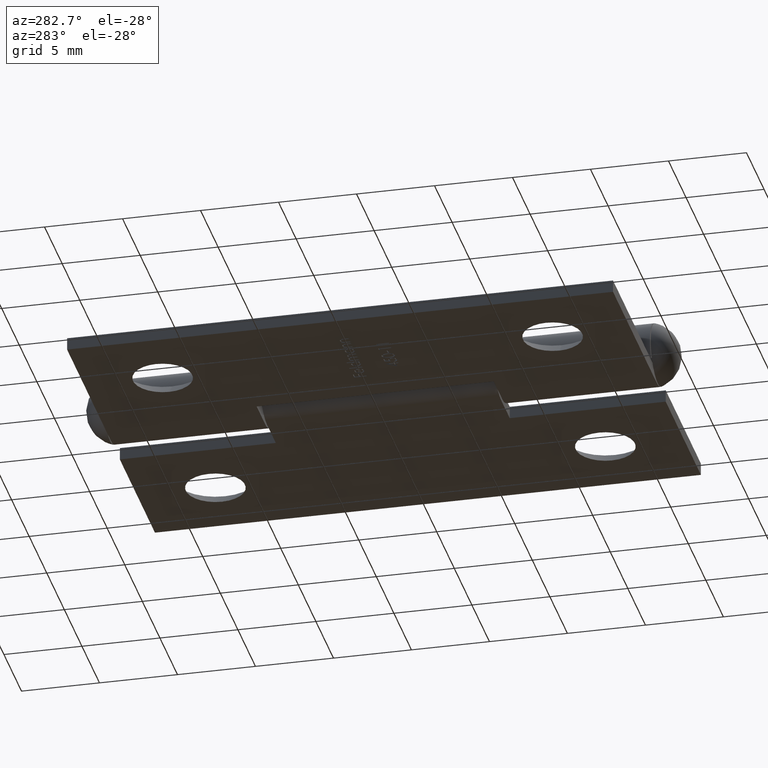
[diagram: clean part render]
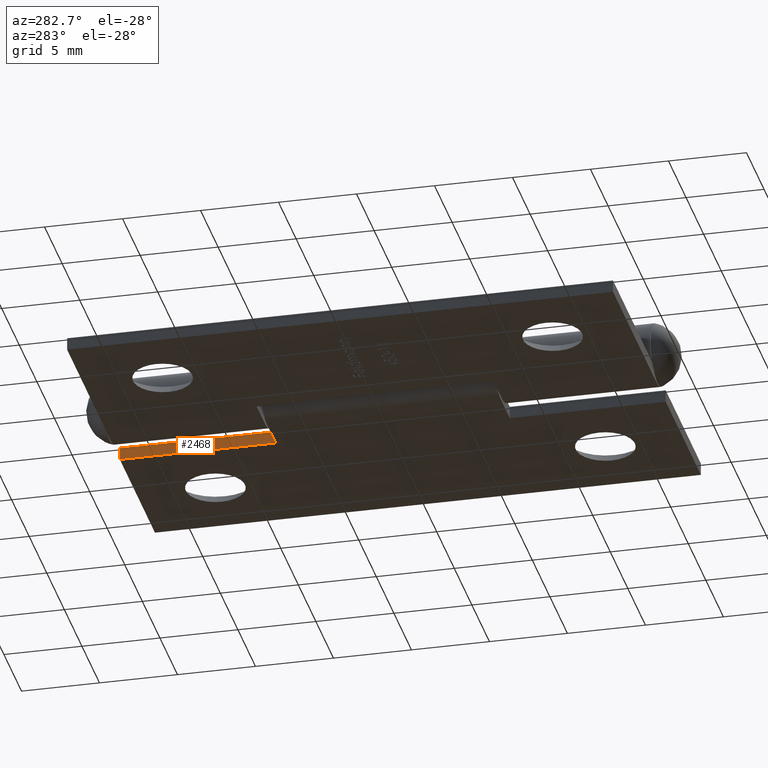
[diagram: same view with one face highlighted and labeled with its STEP entity id]
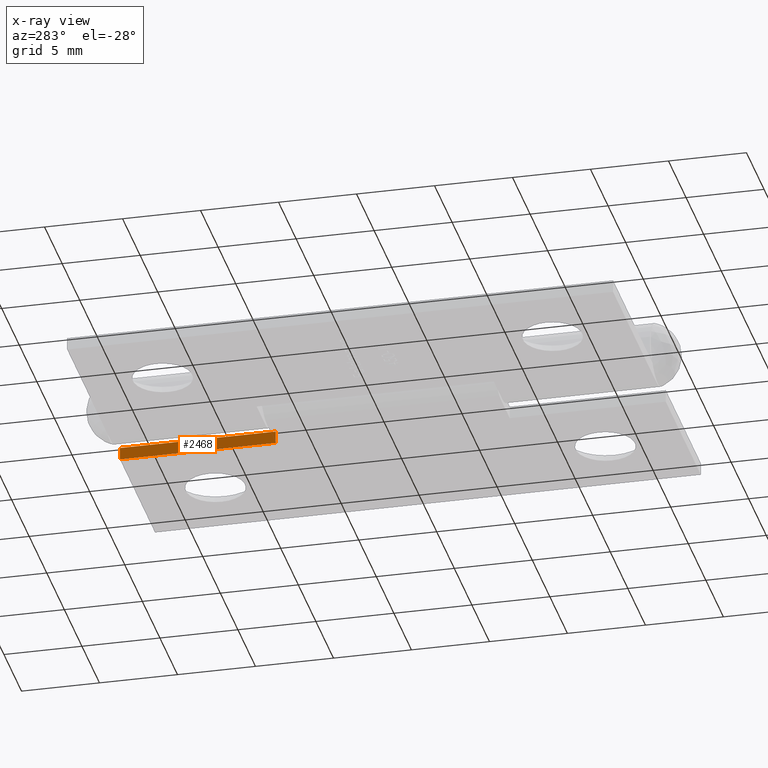
[diagram: x-ray of the same camera — body ghosted, the highlighted face saturated]
A machine part, auxiliary view. The second image highlights one B-rep face of the part: STEP entity #2468.
The next image is the same camera in x-ray: the body ghosted, the highlighted face saturated — about 0% of this face is hidden behind the body in this view.
In plain terms, the highlighted planar face has unit normal (1, -0, 0).
Its self-contained STEP definition (entity closure, byte-faithful):
#1311 = FACE_OUTER_BOUND ( 'NONE', #4558, .T. ) ;
#2468 = ADVANCED_FACE ( 'NONE', ( #1311 ), #4815, .F. ) ;
#2516 = DIRECTION ( 'NONE',  ( -1.734723475976806848E-16, -1.000000000000000000, 0.000000000000000000 ) ) ;
#2612 = CARTESIAN_POINT ( 'NONE',  ( -4.500000000000000000, -7.500000000000000000, 4.000000000000000888 ) ) ;
#2728 = AXIS2_PLACEMENT_3D ( 'NONE', #2612, #5644, #2516 ) ;
#3065 = CARTESIAN_POINT ( 'NONE',  ( -4.499999999999995559, 17.50000000000000000, 0.8000000000000004885 ) ) ;
#3336 = ORIENTED_EDGE ( 'NONE', *, *, #7025, .T. ) ;
#3394 = CARTESIAN_POINT ( 'NONE',  ( -4.500000000000002665, -17.50000000000000000, 2.000000000000000888 ) ) ;
#3542 = CARTESIAN_POINT ( 'NONE',  ( -4.500000000000002665, -17.50000000000000000, 0.8000000000000004885 ) ) ;
#3633 = ORIENTED_EDGE ( 'NONE', *, *, #6879, .T. ) ;
#3951 = LINE ( 'NONE', #10140, #5834 ) ;
#4102 = DIRECTION ( 'NONE',  ( 1.734723475976806848E-16, 1.000000000000000000, -2.888894916580853232E-32 ) ) ;
#4402 = VERTEX_POINT ( 'NONE', #9159 ) ;
#4419 = CARTESIAN_POINT ( 'NONE',  ( -4.500000000000002665, -17.50000000000000000, 5.854691731421726902E-16 ) ) ;
#4442 = LINE ( 'NONE', #3394, #8303 ) ;
#4558 = EDGE_LOOP ( 'NONE', ( #3336, #3633, #5240, #6869 ) ) ;
#4815 = PLANE ( 'NONE',  #2728 ) ;
#4958 = DIRECTION ( 'NONE',  ( -1.301042606982605321E-16, 0.000000000000000000, -1.000000000000000000 ) ) ;
#5240 = ORIENTED_EDGE ( 'NONE', *, *, #7755, .F. ) ;
#5344 = VERTEX_POINT ( 'NONE', #4419 ) ;
#5416 = DIRECTION ( 'NONE',  ( -1.301042606982605321E-16, -0.000000000000000000, -1.000000000000000000 ) ) ;
#5644 = DIRECTION ( 'NONE',  ( -1.000000000000000000, 1.734723475976806848E-16, 1.301042606982605321E-16 ) ) ;
#5834 = VECTOR ( 'NONE', #5416, 1000.000000000000000 ) ;
#6099 = VECTOR ( 'NONE', #4102, 1000.000000000000000 ) ;
#6559 = EDGE_CURVE ( 'NONE', #7979, #9634, #9638, .T. ) ;
#6837 = VECTOR ( 'NONE', #10092, 1000.000000000000000 ) ;
#6869 = ORIENTED_EDGE ( 'NONE', *, *, #6559, .F. ) ;
#6879 = EDGE_CURVE ( 'NONE', #5344, #4402, #9776, .T. ) ;
#7004 = CARTESIAN_POINT ( 'NONE',  ( -4.500000000000000000, -7.500000000000000000, 0.8000000000000003775 ) ) ;
#7025 = EDGE_CURVE ( 'NONE', #7979, #5344, #4442, .T. ) ;
#7216 = CARTESIAN_POINT ( 'NONE',  ( -4.500000000000000888, -7.500000000000000000, 5.854691731421723944E-16 ) ) ;
#7755 = EDGE_CURVE ( 'NONE', #9634, #4402, #3951, .T. ) ;
#7979 = VERTEX_POINT ( 'NONE', #3542 ) ;
#8303 = VECTOR ( 'NONE', #4958, 1000.000000000000000 ) ;
#9159 = CARTESIAN_POINT ( 'NONE',  ( -4.500000000000000888, -7.500000000000000000, 5.854691731421723944E-16 ) ) ;
#9634 = VERTEX_POINT ( 'NONE', #7004 ) ;
#9638 = LINE ( 'NONE', #3065, #6837 ) ;
#9776 = LINE ( 'NONE', #7216, #6099 ) ;
#10092 = DIRECTION ( 'NONE',  ( 1.734723475976806848E-16, 1.000000000000000000, -1.956022599768286140E-32 ) ) ;
#10140 = CARTESIAN_POINT ( 'NONE',  ( -4.500000000000000000, -7.500000000000000000, 4.000000000000000888 ) ) ;